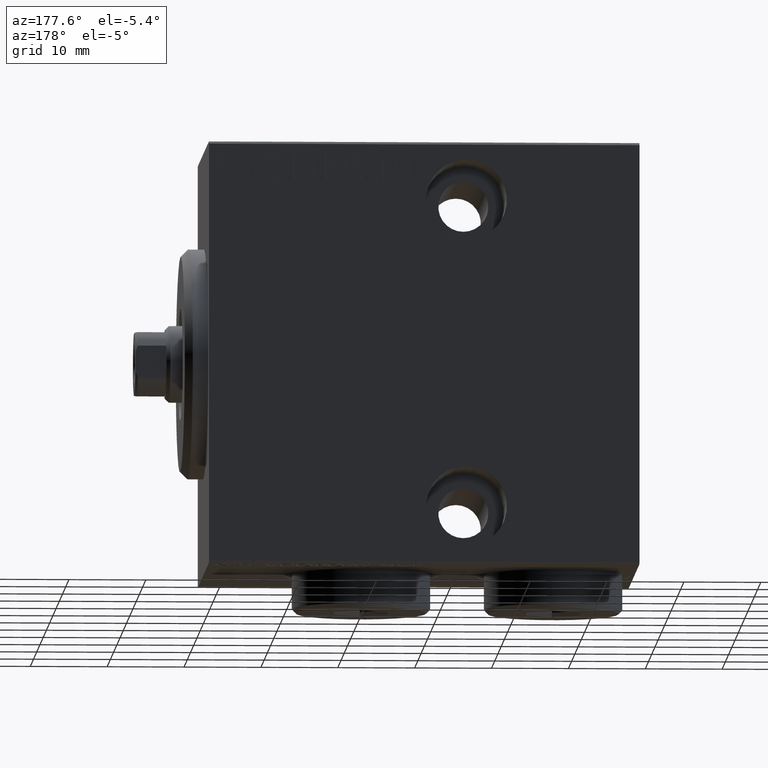
[diagram: clean part render]
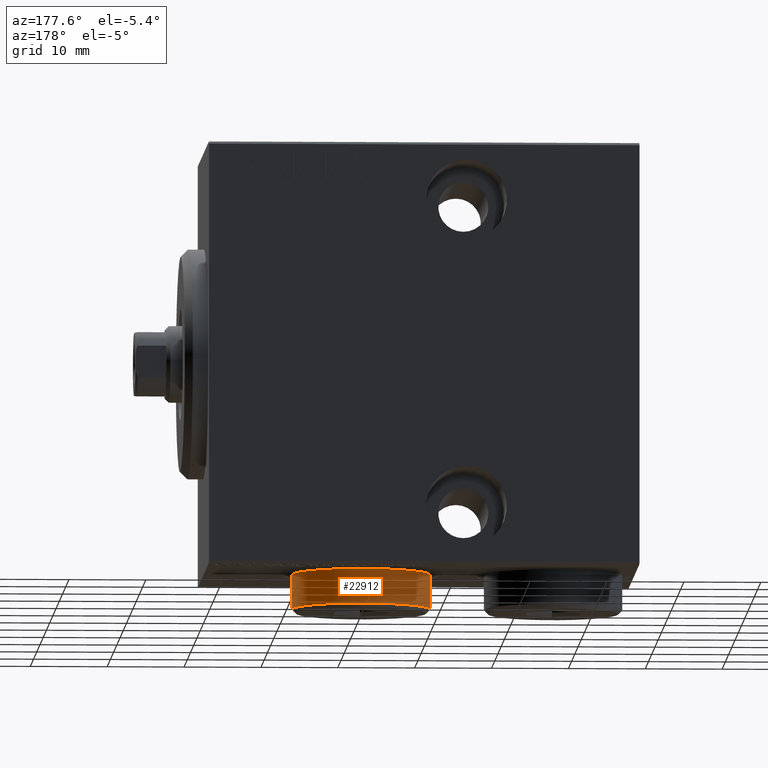
[diagram: same view with one face highlighted and labeled with its STEP entity id]
A machine part, auxiliary view. The second image highlights one B-rep face of the part: STEP entity #22912.
In plain terms, the highlighted cylindrical surface (partial cylindrical patch) has radius 9 mm, axis along (0, 0, 1).
Its self-contained STEP definition (entity closure, byte-faithful):
#2289 = CARTESIAN_POINT ( 'NONE',  ( -9.000000000000001776, 0.000000000000000000, 5.000000000000000000 ) ) ;
#2726 = DIRECTION ( 'NONE',  ( -0.000000000000000000, -0.000000000000000000, -1.000000000000000000 ) ) ;
#3719 = AXIS2_PLACEMENT_3D ( 'NONE', #31854, #22238, #43592 ) ;
#4468 = CARTESIAN_POINT ( 'NONE',  ( 9.000000000000001776, 1.102182119232617911E-15, 0.000000000000000000 ) ) ;
#5409 = EDGE_CURVE ( 'NONE', #37406, #6884, #6804, .T. ) ;
#5970 = CARTESIAN_POINT ( 'NONE',  ( -9.000000000000001776, 0.000000000000000000, 4.500000000000006217 ) ) ;
#6175 = LINE ( 'NONE', #14959, #19424 ) ;
#6804 = CIRCLE ( 'NONE', #14647, 9.000000000000001776 ) ;
#6884 = VERTEX_POINT ( 'NONE', #5970 ) ;
#9211 = DIRECTION ( 'NONE',  ( -0.000000000000000000, -0.000000000000000000, -1.000000000000000000 ) ) ;
#9689 = EDGE_LOOP ( 'NONE', ( #26091, #31508, #12434, #10515 ) ) ;
#10408 = VERTEX_POINT ( 'NONE', #4468 ) ;
#10515 = ORIENTED_EDGE ( 'NONE', *, *, #15503, .T. ) ;
#10732 = CARTESIAN_POINT ( 'NONE',  ( 9.000000000000001776, 1.102182119232617911E-15, 4.500000000000006217 ) ) ;
#12391 = VECTOR ( 'NONE', #2726, 1000.000000000000000 ) ;
#12434 = ORIENTED_EDGE ( 'NONE', *, *, #43175, .T. ) ;
#12656 = CARTESIAN_POINT ( 'NONE',  ( 0.000000000000000000, 0.000000000000000000, 4.500000000000006217 ) ) ;
#14647 = AXIS2_PLACEMENT_3D ( 'NONE', #12656, #23625, #26321 ) ;
#14959 = CARTESIAN_POINT ( 'NONE',  ( 9.000000000000001776, 1.102182119232617911E-15, 5.000000000000000000 ) ) ;
#15503 = EDGE_CURVE ( 'NONE', #29969, #10408, #34397, .T. ) ;
#15934 = DIRECTION ( 'NONE',  ( -1.000000000000000000, 0.000000000000000000, 0.000000000000000000 ) ) ;
#19424 = VECTOR ( 'NONE', #19803, 1000.000000000000000 ) ;
#19803 = DIRECTION ( 'NONE',  ( -0.000000000000000000, -0.000000000000000000, -1.000000000000000000 ) ) ;
#21536 = CYLINDRICAL_SURFACE ( 'NONE', #32800, 9.000000000000001776 ) ;
#22238 = DIRECTION ( 'NONE',  ( 0.000000000000000000, 0.000000000000000000, 1.000000000000000000 ) ) ;
#22912 = ADVANCED_FACE ( 'NONE', ( #24918 ), #21536, .T. ) ;
#23625 = DIRECTION ( 'NONE',  ( 0.000000000000000000, 0.000000000000000000, -1.000000000000000000 ) ) ;
#24918 = FACE_OUTER_BOUND ( 'NONE', #9689, .T. ) ;
#26091 = ORIENTED_EDGE ( 'NONE', *, *, #31565, .F. ) ;
#26321 = DIRECTION ( 'NONE',  ( 1.000000000000000000, 0.000000000000000000, 0.000000000000000000 ) ) ;
#28053 = CARTESIAN_POINT ( 'NONE',  ( -9.000000000000001776, 0.000000000000000000, 0.000000000000000000 ) ) ;
#29969 = VERTEX_POINT ( 'NONE', #28053 ) ;
#31508 = ORIENTED_EDGE ( 'NONE', *, *, #5409, .T. ) ;
#31565 = EDGE_CURVE ( 'NONE', #37406, #10408, #6175, .T. ) ;
#31854 = CARTESIAN_POINT ( 'NONE',  ( 0.000000000000000000, 0.000000000000000000, 0.000000000000000000 ) ) ;
#32035 = CARTESIAN_POINT ( 'NONE',  ( 0.000000000000000000, 0.000000000000000000, 5.000000000000000000 ) ) ;
#32464 = LINE ( 'NONE', #2289, #12391 ) ;
#32800 = AXIS2_PLACEMENT_3D ( 'NONE', #32035, #9211, #15934 ) ;
#34397 = CIRCLE ( 'NONE', #3719, 9.000000000000001776 ) ;
#37406 = VERTEX_POINT ( 'NONE', #10732 ) ;
#43175 = EDGE_CURVE ( 'NONE', #6884, #29969, #32464, .T. ) ;
#43592 = DIRECTION ( 'NONE',  ( 1.000000000000000000, 0.000000000000000000, 0.000000000000000000 ) ) ;